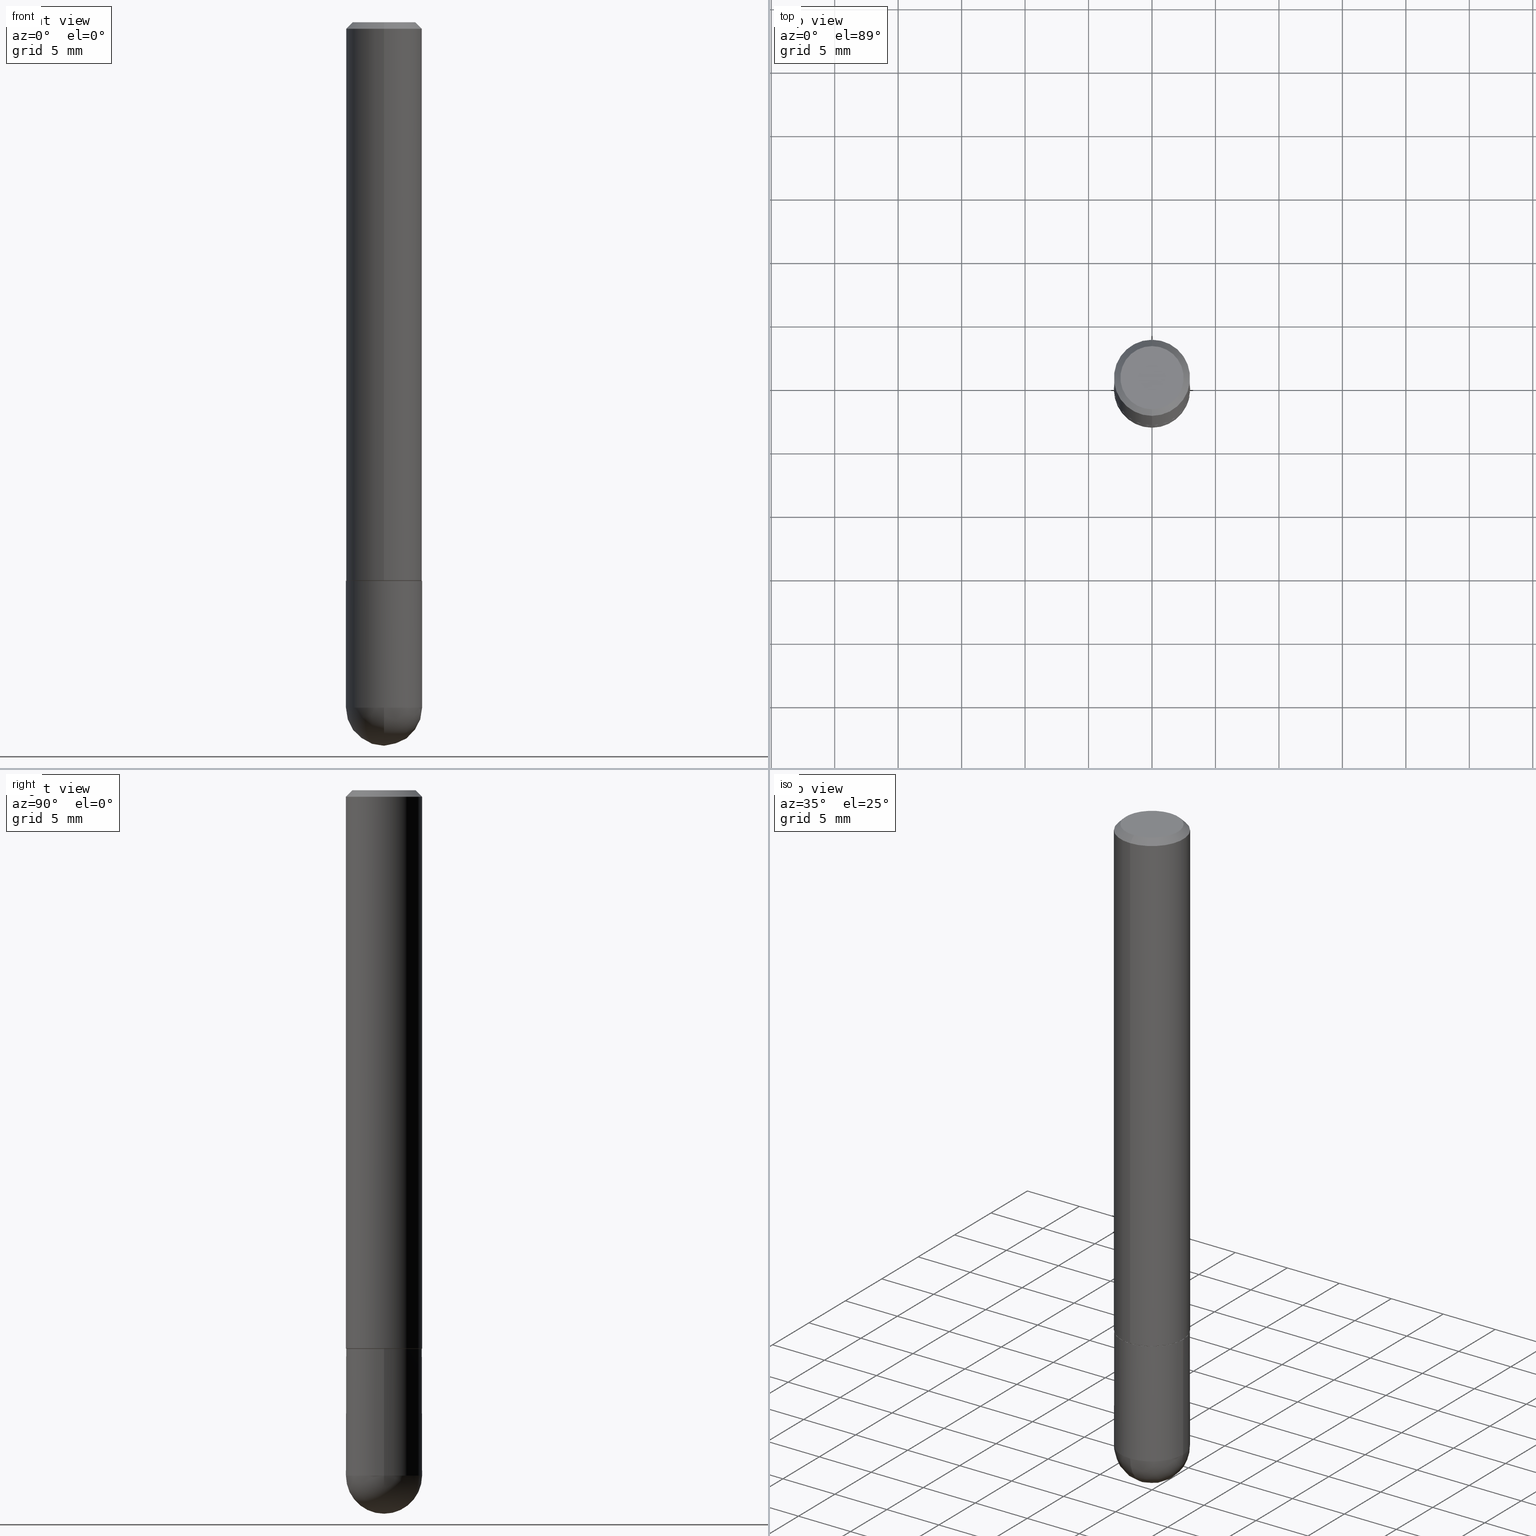
[diagram: canonical four-view strip — front | top / right | iso, engineering-drawing reading convention]
A machine part, canonical four-view strip (front | top / right | iso — engineering-drawing reading convention). The complete STEP part file that produces these views, byte-faithful:
ISO-10303-21;
HEADER;
FILE_DESCRIPTION (( 'STEP AP203' ),
    '1' );
FILE_NAME ('44601.STEP',
    '2024-04-10T11:46:46',
    ( '' ),
    ( '' ),
    'SwSTEP 2.0',
    'SolidWorks 2023',
    '' );
FILE_SCHEMA (( 'CONFIG_CONTROL_DESIGN' ));
ENDSEC;

DATA;
#1 = DIRECTION ( 'NONE',  ( 1.000000000000000000, -6.982962677686265133E-15, 0.000000000000000000 ) ) ;
#2 = ORIENTED_EDGE ( 'NONE', *, *, #333, .F. ) ;
#3 = PERSON_AND_ORGANIZATION ( #281, #204 ) ;
#4 = ORIENTED_EDGE ( 'NONE', *, *, #61, .T. ) ;
#5 = ORIENTED_EDGE ( 'NONE', *, *, #42, .F. ) ;
#6 = CONICAL_SURFACE ( 'NONE', #111, 0.1180999999999999966, 0.7853981633974469467 ) ;
#7 = DIRECTION ( 'NONE',  ( 6.982962677686265922E-15, 1.000000000000000000, -4.626330217890359870E-15 ) ) ;
#8 = DIRECTION ( 'NONE',  ( 1.000000000000000000, -6.982962677686265133E-15, 0.000000000000000000 ) ) ;
#9 = ADVANCED_FACE ( 'NONE', ( #39 ), #356, .T. ) ;
#10 = COORDINATED_UNIVERSAL_TIME_OFFSET ( 5, 0, .BEHIND. ) ;
#11 = DIRECTION ( 'NONE',  ( -6.982962677686265133E-15, -1.000000000000000000, 3.491882975495338888E-15 ) ) ;
#12 = DIRECTION ( 'NONE',  ( -2.445188344809910911E-29, 3.491882975495338888E-15, 1.000000000000000000 ) ) ;
#13 = DIMENSIONAL_EXPONENTS ( 1.000000000000000000, 0.000000000000000000, 0.000000000000000000, 0.000000000000000000, 0.000000000000000000, 0.000000000000000000, 0.000000000000000000 ) ;
#14 = DIRECTION ( 'NONE',  ( -2.445468806185136597E-29, 3.491481338843145583E-15, 1.000000000000000000 ) ) ;
#15 = CARTESIAN_POINT ( 'NONE',  ( 4.867946904035714063E-29, -7.897071694520576927E-15, -2.125999999999999890 ) ) ;
#16 = AXIS2_PLACEMENT_3D ( 'NONE', #390, #72, #124 ) ;
#17 = DIRECTION ( 'NONE',  ( -4.851104656540957175E-15, -0.7071067811865490160, -0.7071067811865460184 ) ) ;
#18 = CARTESIAN_POINT ( 'NONE',  ( 8.246878922347484598E-16, 0.1180999999999999273, -0.02000000000000044104 ) ) ;
#19 = DIRECTION ( 'NONE',  ( -2.445188344809910911E-29, 3.491882975495338888E-15, 1.000000000000000000 ) ) ;
#20 = CONICAL_SURFACE ( 'NONE', #258, 0.1170999999999999958, 0.7853981633976532262 ) ;
#21 = AXIS2_PLACEMENT_3D ( 'NONE', #83, #239, #1 ) ;
#22 = CARTESIAN_POINT ( 'NONE',  ( -0.1180999999999999966, -5.896440253896576841E-15, -2.125999999999999890 ) ) ;
#23 = VERTEX_POINT ( 'NONE', #285 ) ;
#24 = DIRECTION ( 'NONE',  ( -1.000000000000000000, 6.982962677686265922E-15, -4.876176775795935793E-29 ) ) ;
#25 = ADVANCED_FACE ( 'NONE', ( #126 ), #376, .T. ) ;
#26 = VERTEX_POINT ( 'NONE', #222 ) ;
#27 = VERTEX_POINT ( 'NONE', #391 ) ;
#28 = CARTESIAN_POINT ( 'NONE',  ( -7.416198335591022079E-16, -0.09809999999999999276, 3.810097328625765958E-16 ) ) ;
#29 = ORIENTED_EDGE ( 'NONE', *, *, #290, .T. ) ;
#30 = FACE_OUTER_BOUND ( 'NONE', #93, .T. ) ;
#31 = CIRCLE ( 'NONE', #210, 0.1180999999999999966 ) ;
#32 = ADVANCED_FACE ( 'NONE', ( #34 ), #66, .T. ) ;
#33 = APPROVAL_STATUS ( 'not_yet_approved' ) ;
#34 = FACE_OUTER_BOUND ( 'NONE', #260, .T. ) ;
#35 = EDGE_LOOP ( 'NONE', ( #236, #150, #324, #41 ) ) ;
#36 = APPLICATION_PROTOCOL_DEFINITION ( 'international standard', 'config_control_design', 1994, #300 ) ;
#37 = ORIENTED_EDGE ( 'NONE', *, *, #398, .T. ) ;
#38 = APPROVAL_STATUS ( 'not_yet_approved' ) ;
#39 = FACE_OUTER_BOUND ( 'NONE', #96, .T. ) ;
#40 = CALENDAR_DATE ( 2024, 10, 4 ) ;
#41 = ORIENTED_EDGE ( 'NONE', *, *, #280, .T. ) ;
#42 = EDGE_CURVE ( 'NONE', #44, #23, #160, .T. ) ;
#43 = PERSON_AND_ORGANIZATION ( #281, #204 ) ;
#44 = VERTEX_POINT ( 'NONE', #295 ) ;
#45 = CARTESIAN_POINT ( 'NONE',  ( -8.177049295570194526E-16, -0.1171000000000060326, -1.732299999999999729 ) ) ;
#46 = CIRCLE ( 'NONE', #301, 0.09809999999999999276 ) ;
#47 = CC_DESIGN_APPROVAL ( #207, ( #232 ) ) ;
#48 = EDGE_CURVE ( 'NONE', #383, #141, #296, .T. ) ;
#49 = DIRECTION ( 'NONE',  ( -2.445188344809910911E-29, 3.491882975495338888E-15, 1.000000000000000000 ) ) ;
#50 = CARTESIAN_POINT ( 'NONE',  ( 0.1180999999999999966, -6.872981015512729341E-15, -1.732299999999999951 ) ) ;
#51 = DIRECTION ( 'NONE',  ( 6.982962677686265133E-15, 1.000000000000000000, 0.000000000000000000 ) ) ;
#52 = ADVANCED_FACE ( 'NONE', ( #128 ), #253, .F. ) ;
#53 = ORIENTED_EDGE ( 'NONE', *, *, #303, .T. ) ;
#54 = LINE ( 'NONE', #308, #317 ) ;
#55 = DIRECTION ( 'NONE',  ( -2.445468806185136597E-29, 3.491481338843145583E-15, 1.000000000000000000 ) ) ;
#56 = CIRCLE ( 'NONE', #248, 0.1181000000000002048 ) ;
#57 = DIRECTION ( 'NONE',  ( 6.982962677686265922E-15, 1.000000000000000000, -3.505890868245046092E-15 ) ) ;
#58 = ORIENTED_EDGE ( 'NONE', *, *, #211, .F. ) ;
#59 = CARTESIAN_POINT ( 'NONE',  ( 0.000000000000000000, 0.000000000000000000, 0.000000000000000000 ) ) ;
#60 = LINE ( 'NONE', #88, #309 ) ;
#61 = EDGE_CURVE ( 'NONE', #27, #116, #101, .T. ) ;
#62 = SECURITY_CLASSIFICATION_LEVEL ( 'unclassified' ) ;
#63 = COORDINATED_UNIVERSAL_TIME_OFFSET ( 5, 0, .BEHIND. ) ;
#64 = ORIENTED_EDGE ( 'NONE', *, *, #113, .T. ) ;
#65 = DIRECTION ( 'NONE',  ( 1.000000000000000000, 0.000000000000000000, 0.000000000000000000 ) ) ;
#66 = CYLINDRICAL_SURFACE ( 'NONE', #69, 0.1181000000000001077 ) ;
#67 = EDGE_CURVE ( 'NONE', #141, #319, #132, .T. ) ;
#68 = ORIENTED_EDGE ( 'NONE', *, *, #410, .T. ) ;
#69 = AXIS2_PLACEMENT_3D ( 'NONE', #190, #361, #11 ) ;
#70 = ORIENTED_EDGE ( 'NONE', *, *, #290, .F. ) ;
#71 = PERSON_AND_ORGANIZATION_ROLE ( 'creator' ) ;
#72 = DIRECTION ( 'NONE',  ( -2.445188344809910911E-29, 3.491882975495338493E-15, 1.000000000000000000 ) ) ;
#73 = DIRECTION ( 'NONE',  ( 5.024295867789091064E-15, 0.7071067811866947883, 0.7071067811864001351 ) ) ;
#74 = DIRECTION ( 'NONE',  ( -1.000000000000000000, 6.982962677686265922E-15, -4.883557194083112901E-29 ) ) ;
#75 = AXIS2_PLACEMENT_3D ( 'NONE', #59, #241, #120 ) ;
#76 = DESIGN_CONTEXT ( 'detailed design', #300, 'design' ) ;
#77 = CARTESIAN_POINT ( 'NONE',  ( 4.235799769714209423E-29, -6.048988878450575331E-15, -1.732299999999999951 ) ) ;
#78 = CARTESIAN_POINT ( 'NONE',  ( -0.1180999999999999966, -5.896440253896576052E-15, -1.732299999999999951 ) ) ;
#79 = DIRECTION ( 'NONE',  ( 1.000000000000000000, -6.982962677686265133E-15, 0.000000000000000000 ) ) ;
#80 = CIRCLE ( 'NONE', #316, 0.1180999999999999966 ) ;
#81 = VERTEX_POINT ( 'NONE', #298 ) ;
#82 = DIRECTION ( 'NONE',  ( -2.445188344809910911E-29, 3.491882975495338888E-15, 1.000000000000000000 ) ) ;
#83 = CARTESIAN_POINT ( 'NONE',  ( 5.199066681949599750E-29, -7.422889326380526631E-15, -2.125999999999999890 ) ) ;
#84 = FACE_OUTER_BOUND ( 'NONE', #100, .T. ) ;
#85 = AXIS2_PLACEMENT_3D ( 'NONE', #102, #334, #336 ) ;
#86 = CIRCLE ( 'NONE', #357, 0.1180999999999999966 ) ;
#87 = DIRECTION ( 'NONE',  ( -6.982962677686265922E-15, -1.000000000000000000, 3.505890868245046092E-15 ) ) ;
#88 = CARTESIAN_POINT ( 'NONE',  ( 0.1180999999999999966, -8.246878922347480654E-16, 5.758764772215000440E-30 ) ) ;
#89 = ORIENTED_EDGE ( 'NONE', *, *, #394, .F. ) ;
#90 = PERSON_AND_ORGANIZATION ( #281, #204 ) ;
#91 = SHAPE_DEFINITION_REPRESENTATION ( #364, #351 ) ;
#92 = CIRCLE ( 'NONE', #99, 0.1181000000000002603 ) ;
#93 = EDGE_LOOP ( 'NONE', ( #58, #335, #68, #194 ) ) ;
#94 = PERSON_AND_ORGANIZATION_ROLE ( 'design_owner' ) ;
#95 = DIRECTION ( 'NONE',  ( -6.982962677686265922E-15, -1.000000000000000000, 2.332918867347791121E-15 ) ) ;
#96 = EDGE_LOOP ( 'NONE', ( #360, #29, #405, #225 ) ) ;
#97 = APPROVAL_DATE_TIME ( #257, #402 ) ;
#98 = DIRECTION ( 'NONE',  ( -2.445468806185136597E-29, 3.491481338843145583E-15, 1.000000000000000000 ) ) ;
#99 = AXIS2_PLACEMENT_3D ( 'NONE', #393, #235, #51 ) ;
#100 = EDGE_LOOP ( 'NONE', ( #146, #400, #224, #179, #153 ) ) ;
#101 = LINE ( 'NONE', #229, #217 ) ;
#102 = CARTESIAN_POINT ( 'NONE',  ( 4.867946904035714063E-29, -7.897071694520576927E-15, -2.125999999999999890 ) ) ;
#103 = CARTESIAN_POINT ( 'NONE',  ( 5.199066681949599750E-29, -7.422889326380526631E-15, -2.125999999999999890 ) ) ;
#104 = VECTOR ( 'NONE', #73, 39.37007874015748854 ) ;
#105 = AXIS2_PLACEMENT_3D ( 'NONE', #269, #379, #24 ) ;
#106 = CYLINDRICAL_SURFACE ( 'NONE', #330, 0.1181000000000001077 ) ;
#107 = LINE ( 'NONE', #200, #197 ) ;
#108 = MANIFOLD_SOLID_BREP ( 'Body-Move/Copy2[1]', #385 ) ;
#109 = DIRECTION ( 'NONE',  ( 1.000000000000000000, -6.982962677686265133E-15, 0.000000000000000000 ) ) ;
#110 = ORIENTED_EDGE ( 'NONE', *, *, #172, .T. ) ;
#111 = AXIS2_PLACEMENT_3D ( 'NONE', #145, #112, #313 ) ;
#112 = DIRECTION ( 'NONE',  ( 2.445188344809910911E-29, -3.491882975495338888E-15, -1.000000000000000000 ) ) ;
#113 = EDGE_CURVE ( 'NONE', #81, #27, #136, .T. ) ;
#114 = EDGE_LOOP ( 'NONE', ( #187, #274 ) ) ;
#115 = CYLINDRICAL_SURFACE ( 'NONE', #183, 0.1180999999999999966 ) ;
#116 = VERTEX_POINT ( 'NONE', #168 ) ;
#117 = CC_DESIGN_PERSON_AND_ORGANIZATION_ASSIGNMENT ( #90, #349, ( #372 ) ) ;
#118 = PLANE ( 'NONE',  #105 ) ;
#119 = AXIS2_PLACEMENT_3D ( 'NONE', #209, #342, #57 ) ;
#120 = DIRECTION ( 'NONE',  ( 1.000000000000000000, -6.982962677686266711E-15, 4.876176775795936353E-29 ) ) ;
#121 = VERTEX_POINT ( 'NONE', #18 ) ;
#122 = FACE_OUTER_BOUND ( 'NONE', #358, .T. ) ;
#123 = COORDINATED_UNIVERSAL_TIME_OFFSET ( 5, 0, .BEHIND. ) ;
#124 = DIRECTION ( 'NONE',  ( -6.982962677686265922E-15, -1.000000000000000000, 3.491882975495338493E-15 ) ) ;
#125 = VECTOR ( 'NONE', #371, 39.37007874015748143 ) ;
#126 = FACE_OUTER_BOUND ( 'NONE', #406, .T. ) ;
#127 = DATE_TIME_ROLE ( 'classification_date' ) ;
#128 = FACE_OUTER_BOUND ( 'NONE', #276, .T. ) ;
#129 = VERTEX_POINT ( 'NONE', #50 ) ;
#130 = CALENDAR_DATE ( 2024, 10, 4 ) ;
#131 = ORIENTED_EDGE ( 'NONE', *, *, #267, .T. ) ;
#132 = CIRCLE ( 'NONE', #401, 0.1180999999999999966 ) ;
#133 = AXIS2_PLACEMENT_3D ( 'NONE', #314, #181, #347 ) ;
#134 = EDGE_LOOP ( 'NONE', ( #306, #247 ) ) ;
#135 = DIRECTION ( 'NONE',  ( -6.982962677686265922E-15, -1.000000000000000000, 3.491882975495338888E-15 ) ) ;
#136 = LINE ( 'NONE', #45, #243 ) ;
#137 = CARTESIAN_POINT ( 'NONE',  ( 4.236285612954512392E-29, -6.048293123277981078E-15, -1.732299999999999951 ) ) ;
#138 = ADVANCED_FACE ( 'NONE', ( #231 ), #331, .T. ) ;
#139 = CARTESIAN_POINT ( 'NONE',  ( -9.403219469350512246E-46, 1.342838969830929492E-31, 3.845601296648385233E-17 ) ) ;
#140 = CARTESIAN_POINT ( 'NONE',  ( 8.246878922347992427E-16, 0.1180999999999924471, -2.126000000000000334 ) ) ;
#141 = VERTEX_POINT ( 'NONE', #140 ) ;
#142 = FACE_OUTER_BOUND ( 'NONE', #134, .T. ) ;
#143 = AXIS2_PLACEMENT_3D ( 'NONE', #164, #251, #95 ) ;
#144 = CC_DESIGN_DATE_AND_TIME_ASSIGNMENT ( #382, #127, ( #232 ) ) ;
#145 = CARTESIAN_POINT ( 'NONE',  ( 4.890376689619828269E-31, -6.983765950990686946E-17, -0.02000000000000002470 ) ) ;
#146 = ORIENTED_EDGE ( 'NONE', *, *, #67, .T. ) ;
#147 = PLANE ( 'NONE',  #170 ) ;
#148 = DIRECTION ( 'NONE',  ( -2.445468806185136877E-29, 3.491481338843145188E-15, 1.000000000000000000 ) ) ;
#149 = VECTOR ( 'NONE', #367, 39.37007874015748143 ) ;
#150 = ORIENTED_EDGE ( 'NONE', *, *, #154, .F. ) ;
#151 = DIRECTION ( 'NONE',  ( -2.445468806185136597E-29, 3.491481338843145583E-15, 1.000000000000000000 ) ) ;
#152 = MECHANICAL_CONTEXT ( 'NONE', #206, 'mechanical' ) ;
#153 = ORIENTED_EDGE ( 'NONE', *, *, #48, .T. ) ;
#154 = EDGE_CURVE ( 'NONE', #322, #327, #46, .T. ) ;
#155 = APPROVAL_ROLE ( '' ) ;
#156 = CARTESIAN_POINT ( 'NONE',  ( 4.867946904035714063E-29, -7.897071694520576927E-15, -2.125999999999999890 ) ) ;
#157 = DIRECTION ( 'NONE',  ( 0.000000000000000000, 0.000000000000000000, 1.000000000000000000 ) ) ;
#158 = CC_DESIGN_PERSON_AND_ORGANIZATION_ASSIGNMENT ( #291, #71, ( #372 ) ) ;
#159 = AXIS2_PLACEMENT_3D ( 'NONE', #163, #157, #65 ) ;
#160 = LINE ( 'NONE', #289, #104 ) ;
#161 =( NAMED_UNIT ( * ) SI_UNIT ( $, .STERADIAN. ) SOLID_ANGLE_UNIT ( ) );
#162 = ORIENTED_EDGE ( 'NONE', *, *, #303, .F. ) ;
#163 = CARTESIAN_POINT ( 'NONE',  ( 0.000000000000000000, 0.000000000000000000, 0.000000000000000000 ) ) ;
#164 = CARTESIAN_POINT ( 'NONE',  ( 4.235799769714209423E-29, -6.048988878450575331E-15, -1.732299999999999951 ) ) ;
#165 = FACE_OUTER_BOUND ( 'NONE', #191, .T. ) ;
#166 = LOCAL_TIME ( 7, 46, 46.00000000000000000, #215 ) ;
#167 = CARTESIAN_POINT ( 'NONE',  ( -8.391509709326287947E-16, -0.1181000000000077821, -2.125999999999999446 ) ) ;
#168 = CARTESIAN_POINT ( 'NONE',  ( -8.102248135368172434E-16, -0.1181000000000000660, -0.01999999999999961184 ) ) ;
#169 = DIRECTION ( 'NONE',  ( -6.982962677686265922E-15, -1.000000000000000000, 4.626330217890361448E-15 ) ) ;
#170 = AXIS2_PLACEMENT_3D ( 'NONE', #340, #272, #180 ) ;
#171 = DIRECTION ( 'NONE',  ( -2.445188344809910911E-29, 3.491882975495338888E-15, 1.000000000000000000 ) ) ;
#172 = EDGE_CURVE ( 'NONE', #23, #121, #268, .T. ) ;
#173 = CC_DESIGN_PERSON_AND_ORGANIZATION_ASSIGNMENT ( #250, #94, ( #188 ) ) ;
#174 = CARTESIAN_POINT ( 'NONE',  ( 0.1180999999999999966, -7.560279117064003300E-15, -2.125999999999999890 ) ) ;
#175 = EDGE_LOOP ( 'NONE', ( #318, #228, #4, #312 ) ) ;
#176 = AXIS2_PLACEMENT_3D ( 'NONE', #15, #74, #263 ) ;
#177 = APPROVAL_PERSON_ORGANIZATION ( #226, #402, #389 ) ;
#178 = CARTESIAN_POINT ( 'NONE',  ( 7.548582654578854574E-16, 0.09809999999999999276, -3.040977069296088172E-16 ) ) ;
#179 = ORIENTED_EDGE ( 'NONE', *, *, #398, .F. ) ;
#180 = DIRECTION ( 'NONE',  ( 6.982962677686265922E-15, 1.000000000000000000, -3.491882975495338493E-15 ) ) ;
#181 = DIRECTION ( 'NONE',  ( -2.445188344809910911E-29, 3.491882975495338888E-15, 1.000000000000000000 ) ) ;
#182 = AXIS2_PLACEMENT_3D ( 'NONE', #198, #19, #213 ) ;
#183 = AXIS2_PLACEMENT_3D ( 'NONE', #380, #55, #407 ) ;
#184 = PERSON_AND_ORGANIZATION_ROLE ( 'classification_officer' ) ;
#185 = EDGE_CURVE ( 'NONE', #129, #220, #278, .T. ) ;
#186 = APPLICATION_PROTOCOL_DEFINITION ( 'international standard', 'config_control_design', 1994, #206 ) ;
#187 = ORIENTED_EDGE ( 'NONE', *, *, #185, .T. ) ;
#188 = PRODUCT ( '44601', '44601', '', ( #152 ) ) ;
#189 = PERSON_AND_ORGANIZATION_ROLE ( 'creator' ) ;
#190 = CARTESIAN_POINT ( 'NONE',  ( 0.000000000000000000, 0.000000000000000000, 0.000000000000000000 ) ) ;
#191 = EDGE_LOOP ( 'NONE', ( #5, #53, #64, #344 ) ) ;
#192 = CALENDAR_DATE ( 2024, 10, 4 ) ;
#193 = AXIS2_PLACEMENT_3D ( 'NONE', #409, #242, #87 ) ;
#194 = ORIENTED_EDGE ( 'NONE', *, *, #237, .F. ) ;
#195 = DIRECTION ( 'NONE',  ( -1.000000000000000000, 6.982962677686265922E-15, -4.883557194083112901E-29 ) ) ;
#196 = ORIENTED_EDGE ( 'NONE', *, *, #48, .F. ) ;
#197 = VECTOR ( 'NONE', #17, 39.37007874015748143 ) ;
#198 = CARTESIAN_POINT ( 'NONE',  ( 4.235799769714209423E-29, -6.048988878450575331E-15, -1.732299999999999951 ) ) ;
#199 = APPROVAL_PERSON_ORGANIZATION ( #282, #412, #219 ) ;
#200 = CARTESIAN_POINT ( 'NONE',  ( -8.102248135368172434E-16, -0.1181000000000000660, -0.01999999999999961184 ) ) ;
#201 = UNCERTAINTY_MEASURE_WITH_UNIT (LENGTH_MEASURE( 1.000000000000000082E-05 ), #338, 'distance_accuracy_value', 'NONE');
#202 = CARTESIAN_POINT ( 'NONE',  ( 4.890376689619828269E-31, -6.983765950990686946E-17, -0.02000000000000002470 ) ) ;
#203 = CARTESIAN_POINT ( 'NONE',  ( 4.233354581369399407E-29, -6.045496995475080309E-15, -1.731300000000000283 ) ) ;
#204 = ORGANIZATION ( 'UNSPECIFIED', 'UNSPECIFIED', '' ) ;
#205 = LENGTH_MEASURE_WITH_UNIT ( LENGTH_MEASURE( 0.02539999999999999897 ), #375 );
#206 = APPLICATION_CONTEXT ( 'configuration controlled 3d designs of mechanical parts and assemblies' ) ;
#207 = APPROVAL ( #33, 'UNSPECIFIED' ) ;
#208 = FACE_OUTER_BOUND ( 'NONE', #114, .T. ) ;
#209 = CARTESIAN_POINT ( 'NONE',  ( 4.890376689619828269E-31, -6.983765950990686946E-17, -0.02000000000000002470 ) ) ;
#210 = AXIS2_PLACEMENT_3D ( 'NONE', #103, #262, #79 ) ;
#211 = EDGE_CURVE ( 'NONE', #327, #322, #270, .T. ) ;
#212 = CC_DESIGN_PERSON_AND_ORGANIZATION_ASSIGNMENT ( #43, #189, ( #341 ) ) ;
#213 = DIRECTION ( 'NONE',  ( -6.982962677686265922E-15, -1.000000000000000000, 2.332918867347791121E-15 ) ) ;
#214 = ORIENTED_EDGE ( 'NONE', *, *, #42, .T. ) ;
#215 = COORDINATED_UNIVERSAL_TIME_OFFSET ( 5, 0, .BEHIND. ) ;
#216 = ADVANCED_FACE ( 'NONE', ( #399 ), #106, .T. ) ;
#217 = VECTOR ( 'NONE', #297, 39.37007874015748143 ) ;
#218 = LOCAL_TIME ( 7, 46, 46.00000000000000000, #63 ) ;
#219 = APPROVAL_ROLE ( '' ) ;
#220 = VERTEX_POINT ( 'NONE', #78 ) ;
#221 = DATE_AND_TIME ( #40, #166 ) ;
#222 = CARTESIAN_POINT ( 'NONE',  ( 5.161806526983783890E-29, -8.302184101288988852E-15, -2.244100000000000428 ) ) ;
#223 = CALENDAR_DATE ( 2024, 10, 4 ) ;
#224 = ORIENTED_EDGE ( 'NONE', *, *, #185, .F. ) ;
#225 = ORIENTED_EDGE ( 'NONE', *, *, #67, .F. ) ;
#226 = PERSON_AND_ORGANIZATION ( #281, #204 ) ;
#227 = LOCAL_TIME ( 7, 46, 46.00000000000000000, #10 ) ;
#228 = ORIENTED_EDGE ( 'NONE', *, *, #339, .T. ) ;
#229 = CARTESIAN_POINT ( 'NONE',  ( -8.246878922347486570E-16, -0.1181000000000001077, 4.123913794059998964E-16 ) ) ;
#230 = AXIS2_PLACEMENT_3D ( 'NONE', #156, #195, #7 ) ;
#231 = FACE_OUTER_BOUND ( 'NONE', #271, .T. ) ;
#232 = SECURITY_CLASSIFICATION ( '', '', #62 ) ;
#233 = CC_DESIGN_PERSON_AND_ORGANIZATION_ASSIGNMENT ( #288, #184, ( #232 ) ) ;
#234 = DIRECTION ( 'NONE',  ( -2.445188344809910911E-29, 3.491882975495338888E-15, 1.000000000000000000 ) ) ;
#235 = DIRECTION ( 'NONE',  ( 1.000000000000000000, -6.982962677686265922E-15, 4.883557194083112340E-29 ) ) ;
#236 = ORIENTED_EDGE ( 'NONE', *, *, #245, .F. ) ;
#237 = EDGE_CURVE ( 'NONE', #322, #121, #397, .T. ) ;
#238 = CARTESIAN_POINT ( 'NONE',  ( 8.246878922347484598E-16, 0.1180999999999999273, -0.02000000000000044104 ) ) ;
#239 = DIRECTION ( 'NONE',  ( -2.445468806185136597E-29, 3.491481338843145583E-15, 1.000000000000000000 ) ) ;
#240 = VERTEX_POINT ( 'NONE', #167 ) ;
#241 = DIRECTION ( 'NONE',  ( -2.445468806185136597E-29, 3.491481338843145583E-15, 1.000000000000000000 ) ) ;
#242 = DIRECTION ( 'NONE',  ( -2.445188344809910911E-29, 3.491882975495338888E-15, 1.000000000000000000 ) ) ;
#243 = VECTOR ( 'NONE', #332, 39.37007874015748854 ) ;
#244 = DIRECTION ( 'NONE',  ( -6.982962677686265922E-15, -1.000000000000000000, 4.626330217890361448E-15 ) ) ;
#245 = EDGE_CURVE ( 'NONE', #327, #116, #107, .T. ) ;
#246 = DATE_AND_TIME ( #192, #249 ) ;
#247 = ORIENTED_EDGE ( 'NONE', *, *, #211, .T. ) ;
#248 = AXIS2_PLACEMENT_3D ( 'NONE', #203, #12, #169 ) ;
#249 = LOCAL_TIME ( 7, 46, 46.00000000000000000, #123 ) ;
#250 = PERSON_AND_ORGANIZATION ( #281, #204 ) ;
#251 = DIRECTION ( 'NONE',  ( -2.445188344809910911E-29, 3.491882975495338888E-15, 1.000000000000000000 ) ) ;
#252 = APPROVAL_DATE_TIME ( #246, #207 ) ;
#253 = PLANE ( 'NONE',  #16 ) ;
#254 = EDGE_CURVE ( 'NONE', #26, #141, #92, .T. ) ;
#255 = ORIENTED_EDGE ( 'NONE', *, *, #254, .T. ) ;
#256 = ORIENTED_EDGE ( 'NONE', *, *, #113, .F. ) ;
#257 = DATE_AND_TIME ( #223, #227 ) ;
#258 = AXIS2_PLACEMENT_3D ( 'NONE', #77, #82, #368 ) ;
#259 = CC_DESIGN_APPROVAL ( #412, ( #341 ) ) ;
#260 = EDGE_LOOP ( 'NONE', ( #131, #110, #388, #304 ) ) ;
#261 = ADVANCED_FACE ( 'NONE', ( #165 ), #20, .T. ) ;
#262 = DIRECTION ( 'NONE',  ( -2.445468806185136597E-29, 3.491481338843145583E-15, 1.000000000000000000 ) ) ;
#263 = DIRECTION ( 'NONE',  ( 6.982962677686265922E-15, 1.000000000000000000, -4.626330217890359870E-15 ) ) ;
#264 = DIRECTION ( 'NONE',  ( -2.445468806185136597E-29, 3.491481338843145583E-15, 1.000000000000000000 ) ) ;
#265 = CIRCLE ( 'NONE', #193, 0.1180999999999999966 ) ;
#266 = DIRECTION ( 'NONE',  ( -6.982962677686265133E-15, -1.000000000000000000, 3.491882975495338888E-15 ) ) ;
#267 = EDGE_CURVE ( 'NONE', #27, #23, #56, .T. ) ;
#268 = LINE ( 'NONE', #299, #149 ) ;
#269 = CARTESIAN_POINT ( 'NONE',  ( 8.246878922347902694E-16, 0.1180999999999939598, -1.732300000000000617 ) ) ;
#270 = CIRCLE ( 'NONE', #395, 0.09809999999999999276 ) ;
#271 = EDGE_LOOP ( 'NONE', ( #70, #255, #196, #293 ) ) ;
#272 = DIRECTION ( 'NONE',  ( 2.445188344809910911E-29, -3.491882975495338493E-15, -1.000000000000000000 ) ) ;
#273 = EDGE_CURVE ( 'NONE', #319, #240, #31, .T. ) ;
#274 = ORIENTED_EDGE ( 'NONE', *, *, #394, .T. ) ;
#275 = CARTESIAN_POINT ( 'NONE',  ( 4.236285612954512392E-29, -6.048293123277981078E-15, -1.732299999999999951 ) ) ;
#276 = EDGE_LOOP ( 'NONE', ( #355, #162 ) ) ;
#277 = CYLINDRICAL_SURFACE ( 'NONE', #75, 0.1180999999999999966 ) ;
#278 = CIRCLE ( 'NONE', #323, 0.1180999999999999966 ) ;
#279 = CIRCLE ( 'NONE', #133, 0.1170999999999999958 ) ;
#280 = EDGE_CURVE ( 'NONE', #121, #116, #80, .T. ) ;
#281 = PERSON ( 'UNSPECIFIED', 'UNSPECIFIED', 'UNSPECIFIED', ('UNSPECIFIED'), ('UNSPECIFIED'), ('UNSPECIFIED') ) ;
#282 = PERSON_AND_ORGANIZATION ( #281, #204 ) ;
#283 = ORIENTED_EDGE ( 'NONE', *, *, #267, .F. ) ;
#284 =( NAMED_UNIT ( * ) PLANE_ANGLE_UNIT ( ) SI_UNIT ( $, .RADIAN. ) );
#285 = CARTESIAN_POINT ( 'NONE',  ( 8.391509709327007782E-16, 0.1180999999999941541, -1.731300000000000727 ) ) ;
#286 = CLOSED_SHELL ( 'NONE', ( #25, #32, #384, #320, #216, #261, #52, #353 ) ) ;
#287 = AXIS2_PLACEMENT_3D ( 'NONE', #373, #374, #244 ) ;
#288 = PERSON_AND_ORGANIZATION ( #281, #204 ) ;
#289 = CARTESIAN_POINT ( 'NONE',  ( 8.320455435751194916E-16, 0.1170999999999939450, -1.732300000000000173 ) ) ;
#290 = EDGE_CURVE ( 'NONE', #26, #240, #315, .T. ) ;
#291 = PERSON_AND_ORGANIZATION ( #281, #204 ) ;
#292 = CARTESIAN_POINT ( 'NONE',  ( 5.199066681949599750E-29, -7.422889326380526631E-15, -2.125999999999999890 ) ) ;
#293 = ORIENTED_EDGE ( 'NONE', *, *, #328, .F. ) ;
#294 = DATE_TIME_ROLE ( 'creation_date' ) ;
#295 = CARTESIAN_POINT ( 'NONE',  ( 8.355982572539207845E-16, 0.1170999999999939450, -1.732300000000000173 ) ) ;
#296 = CIRCLE ( 'NONE', #343, 0.1180999999999999966 ) ;
#297 = DIRECTION ( 'NONE',  ( -2.445188344809910911E-29, 3.491882975495338493E-15, 1.000000000000000000 ) ) ;
#298 = CARTESIAN_POINT ( 'NONE',  ( -8.177049295570194526E-16, -0.1171000000000060326, -1.732299999999999729 ) ) ;
#299 = CARTESIAN_POINT ( 'NONE',  ( 8.391509709326788873E-16, 0.1181000000000001077, -4.123913794059998964E-16 ) ) ;
#300 = APPLICATION_CONTEXT ( 'configuration controlled 3d designs of mechanical parts and assemblies' ) ;
#301 = AXIS2_PLACEMENT_3D ( 'NONE', #365, #171, #302 ) ;
#302 = DIRECTION ( 'NONE',  ( -6.982962677686265922E-15, -1.000000000000000000, 3.491882975495338888E-15 ) ) ;
#303 = EDGE_CURVE ( 'NONE', #44, #81, #369, .T. ) ;
#304 = ORIENTED_EDGE ( 'NONE', *, *, #61, .F. ) ;
#305 = DIRECTION ( 'NONE',  ( -2.445188344809910911E-29, 3.491882975495338888E-15, 1.000000000000000000 ) ) ;
#306 = ORIENTED_EDGE ( 'NONE', *, *, #154, .T. ) ;
#307 = ADVANCED_FACE ( 'NONE', ( #122 ), #277, .T. ) ;
#308 = CARTESIAN_POINT ( 'NONE',  ( -0.1180999999999999966, 8.391509709326782957E-16, -5.809262341591043784E-30 ) ) ;
#309 = VECTOR ( 'NONE', #148, 39.37007874015748143 ) ;
#310 = PRODUCT_RELATED_PRODUCT_CATEGORY ( 'detail', '', ( #188 ) ) ;
#311 = DIRECTION ( 'NONE',  ( -2.445468806185136877E-29, 3.491481338843145188E-15, 1.000000000000000000 ) ) ;
#312 = ORIENTED_EDGE ( 'NONE', *, *, #280, .F. ) ;
#313 = DIRECTION ( 'NONE',  ( 6.982962677686265922E-15, 1.000000000000000000, -3.505890868245046092E-15 ) ) ;
#314 = CARTESIAN_POINT ( 'NONE',  ( 4.235799769714209423E-29, -6.048988878450575331E-15, -1.732299999999999951 ) ) ;
#315 = CIRCLE ( 'NONE', #85, 0.1181000000000002603 ) ;
#316 = AXIS2_PLACEMENT_3D ( 'NONE', #202, #49, #392 ) ;
#317 = VECTOR ( 'NONE', #311, 39.37007874015748143 ) ;
#318 = ORIENTED_EDGE ( 'NONE', *, *, #172, .F. ) ;
#319 = VERTEX_POINT ( 'NONE', #22 ) ;
#320 = ADVANCED_FACE ( 'NONE', ( #404 ), #6, .T. ) ;
#321 = DATE_AND_TIME ( #130, #403 ) ;
#322 = VERTEX_POINT ( 'NONE', #178 ) ;
#323 = AXIS2_PLACEMENT_3D ( 'NONE', #137, #264, #396 ) ;
#324 = ORIENTED_EDGE ( 'NONE', *, *, #237, .T. ) ;
#325 = CC_DESIGN_DATE_AND_TIME_ASSIGNMENT ( #321, #294, ( #341 ) ) ;
#326 = APPROVAL_STATUS ( 'not_yet_approved' ) ;
#327 = VERTEX_POINT ( 'NONE', #28 ) ;
#328 = EDGE_CURVE ( 'NONE', #240, #383, #363, .T. ) ;
#329 = CARTESIAN_POINT ( 'NONE',  ( 0.000000000000000000, 0.000000000000000000, 0.000000000000000000 ) ) ;
#330 = AXIS2_PLACEMENT_3D ( 'NONE', #329, #234, #266 ) ;
#331 = SPHERICAL_SURFACE ( 'NONE', #176, 0.1181000000000002603 ) ;
#332 = DIRECTION ( 'NONE',  ( -4.937700262165559362E-15, -0.7071067811866899033, 0.7071067811864050201 ) ) ;
#333 = EDGE_CURVE ( 'NONE', #319, #220, #54, .T. ) ;
#334 = DIRECTION ( 'NONE',  ( -1.000000000000000000, 7.105427357601001070E-15, -4.926315508542082329E-29 ) ) ;
#335 = ORIENTED_EDGE ( 'NONE', *, *, #245, .T. ) ;
#336 = DIRECTION ( 'NONE',  ( -7.105427357601000281E-15, -1.000000000000000000, 0.000000000000000000 ) ) ;
#337 = CIRCLE ( 'NONE', #287, 0.1181000000000002048 ) ;
#338 =( CONVERSION_BASED_UNIT ( 'INCH', #205 ) LENGTH_UNIT ( ) NAMED_UNIT ( #13 ) );
#339 = EDGE_CURVE ( 'NONE', #23, #27, #337, .T. ) ;
#340 = CARTESIAN_POINT ( 'NONE',  ( 6.850286386810226523E-16, 0.09809999999999999276, -3.233257134128507618E-16 ) ) ;
#341 = PRODUCT_DEFINITION ( 'UNKNOWN', '', #372, #76 ) ;
#342 = DIRECTION ( 'NONE',  ( 2.445188344809910911E-29, -3.491882975495338888E-15, -1.000000000000000000 ) ) ;
#343 = AXIS2_PLACEMENT_3D ( 'NONE', #292, #98, #8 ) ;
#344 = ORIENTED_EDGE ( 'NONE', *, *, #339, .F. ) ;
#345 =( GEOMETRIC_REPRESENTATION_CONTEXT ( 3 ) GLOBAL_UNCERTAINTY_ASSIGNED_CONTEXT ( ( #201 ) ) GLOBAL_UNIT_ASSIGNED_CONTEXT ( ( #338, #284, #161 ) ) REPRESENTATION_CONTEXT ( 'NONE', 'WORKASPACE' ) );
#346 = DIRECTION ( 'NONE',  ( 1.000000000000000000, -6.982962677686265133E-15, 0.000000000000000000 ) ) ;
#347 = DIRECTION ( 'NONE',  ( -6.982962677686265922E-15, -1.000000000000000000, 2.332918867347791121E-15 ) ) ;
#348 = ADVANCED_FACE ( 'NONE', ( #208 ), #118, .F. ) ;
#349 = PERSON_AND_ORGANIZATION_ROLE ( 'design_supplier' ) ;
#350 = CC_DESIGN_APPROVAL ( #402, ( #372 ) ) ;
#351 = ADVANCED_BREP_SHAPE_REPRESENTATION ( '44601', ( #108, #381, #159 ), #345 ) ;
#352 = ORIENTED_EDGE ( 'NONE', *, *, #378, .T. ) ;
#353 = ADVANCED_FACE ( 'NONE', ( #142 ), #147, .F. ) ;
#354 = COORDINATED_UNIVERSAL_TIME_OFFSET ( 5, 0, .BEHIND. ) ;
#355 = ORIENTED_EDGE ( 'NONE', *, *, #378, .F. ) ;
#356 = SPHERICAL_SURFACE ( 'NONE', #230, 0.1181000000000002603 ) ;
#357 = AXIS2_PLACEMENT_3D ( 'NONE', #275, #151, #346 ) ;
#358 = EDGE_LOOP ( 'NONE', ( #2, #386, #408, #37, #89 ) ) ;
#359 = APPROVAL_DATE_TIME ( #221, #412 ) ;
#360 = ORIENTED_EDGE ( 'NONE', *, *, #254, .F. ) ;
#361 = DIRECTION ( 'NONE',  ( -2.445188344809910911E-29, 3.491882975495338888E-15, 1.000000000000000000 ) ) ;
#362 = CARTESIAN_POINT ( 'NONE',  ( 5.199066681949599750E-29, -7.422889326380526631E-15, -2.125999999999999890 ) ) ;
#363 = CIRCLE ( 'NONE', #21, 0.1180999999999999966 ) ;
#364 = PRODUCT_DEFINITION_SHAPE ( 'NONE', 'NONE',  #341 ) ;
#365 = CARTESIAN_POINT ( 'NONE',  ( -9.403219469350512246E-46, 1.342838969830929492E-31, 3.845601296648385233E-17 ) ) ;
#366 = ADVANCED_FACE ( 'NONE', ( #84 ), #115, .T. ) ;
#367 = DIRECTION ( 'NONE',  ( -2.445188344809910911E-29, 3.491882975495338493E-15, 1.000000000000000000 ) ) ;
#368 = DIRECTION ( 'NONE',  ( -6.982962677686265922E-15, -1.000000000000000000, 2.332918867347791121E-15 ) ) ;
#369 = CIRCLE ( 'NONE', #182, 0.1170999999999999958 ) ;
#370 = CC_DESIGN_SECURITY_CLASSIFICATION ( #232, ( #372 ) ) ;
#371 = DIRECTION ( 'NONE',  ( 4.937700262164540942E-15, 0.7071067811865441310, -0.7071067811865509034 ) ) ;
#372 = PRODUCT_DEFINITION_FORMATION_WITH_SPECIFIED_SOURCE ( 'ANY', '', #188, .NOT_KNOWN. ) ;
#373 = CARTESIAN_POINT ( 'NONE',  ( 4.233354581369399407E-29, -6.045496995475080309E-15, -1.731300000000000283 ) ) ;
#374 = DIRECTION ( 'NONE',  ( -2.445188344809910911E-29, 3.491882975495338888E-15, 1.000000000000000000 ) ) ;
#375 =( LENGTH_UNIT ( ) NAMED_UNIT ( * ) SI_UNIT ( $, .METRE. ) );
#376 = CONICAL_SURFACE ( 'NONE', #143, 0.1170999999999999958, 0.7853981633976532262 ) ;
#377 = APPROVAL_PERSON_ORGANIZATION ( #3, #207, #155 ) ;
#378 = EDGE_CURVE ( 'NONE', #81, #44, #279, .T. ) ;
#379 = DIRECTION ( 'NONE',  ( 2.438088387897960049E-29, -3.491481338843145188E-15, -1.000000000000000000 ) ) ;
#380 = CARTESIAN_POINT ( 'NONE',  ( 0.000000000000000000, 0.000000000000000000, 0.000000000000000000 ) ) ;
#381 = MANIFOLD_SOLID_BREP ( 'Body-Move/Copy2[2]', #286 ) ;
#382 = DATE_AND_TIME ( #387, #218 ) ;
#383 = VERTEX_POINT ( 'NONE', #174 ) ;
#384 = ADVANCED_FACE ( 'NONE', ( #30 ), #411, .T. ) ;
#385 = CLOSED_SHELL ( 'NONE', ( #366, #9, #138, #348, #307 ) ) ;
#386 = ORIENTED_EDGE ( 'NONE', *, *, #273, .T. ) ;
#387 = CALENDAR_DATE ( 2024, 10, 4 ) ;
#388 = ORIENTED_EDGE ( 'NONE', *, *, #410, .F. ) ;
#389 = APPROVAL_ROLE ( '' ) ;
#390 = CARTESIAN_POINT ( 'NONE',  ( 4.235799769714209423E-29, -6.048988878450575331E-15, -1.732299999999999951 ) ) ;
#391 = CARTESIAN_POINT ( 'NONE',  ( -8.246878922347070446E-16, -0.1181000000000062417, -1.731299999999999617 ) ) ;
#392 = DIRECTION ( 'NONE',  ( -6.982962677686265922E-15, -1.000000000000000000, 3.505890868245046092E-15 ) ) ;
#393 = CARTESIAN_POINT ( 'NONE',  ( 4.867946904035714063E-29, -7.897071694520576927E-15, -2.125999999999999890 ) ) ;
#394 = EDGE_CURVE ( 'NONE', #220, #129, #86, .T. ) ;
#395 = AXIS2_PLACEMENT_3D ( 'NONE', #139, #305, #135 ) ;
#396 = DIRECTION ( 'NONE',  ( 1.000000000000000000, -6.982962677686265133E-15, 0.000000000000000000 ) ) ;
#397 = LINE ( 'NONE', #238, #125 ) ;
#398 = EDGE_CURVE ( 'NONE', #383, #129, #60, .T. ) ;
#399 = FACE_OUTER_BOUND ( 'NONE', #175, .T. ) ;
#400 = ORIENTED_EDGE ( 'NONE', *, *, #333, .T. ) ;
#401 = AXIS2_PLACEMENT_3D ( 'NONE', #362, #14, #109 ) ;
#402 = APPROVAL ( #38, 'UNSPECIFIED' ) ;
#403 = LOCAL_TIME ( 7, 46, 46.00000000000000000, #354 ) ;
#404 = FACE_OUTER_BOUND ( 'NONE', #35, .T. ) ;
#405 = ORIENTED_EDGE ( 'NONE', *, *, #273, .F. ) ;
#406 = EDGE_LOOP ( 'NONE', ( #352, #214, #283, #256 ) ) ;
#407 = DIRECTION ( 'NONE',  ( 1.000000000000000000, -6.982962677686266711E-15, 4.876176775795936353E-29 ) ) ;
#408 = ORIENTED_EDGE ( 'NONE', *, *, #328, .T. ) ;
#409 = CARTESIAN_POINT ( 'NONE',  ( 4.890376689619828269E-31, -6.983765950990686946E-17, -0.02000000000000002470 ) ) ;
#410 = EDGE_CURVE ( 'NONE', #116, #121, #265, .T. ) ;
#411 = CONICAL_SURFACE ( 'NONE', #119, 0.1180999999999999966, 0.7853981633974469467 ) ;
#412 = APPROVAL ( #326, 'UNSPECIFIED' ) ;
ENDSEC;
END-ISO-10303-21;
